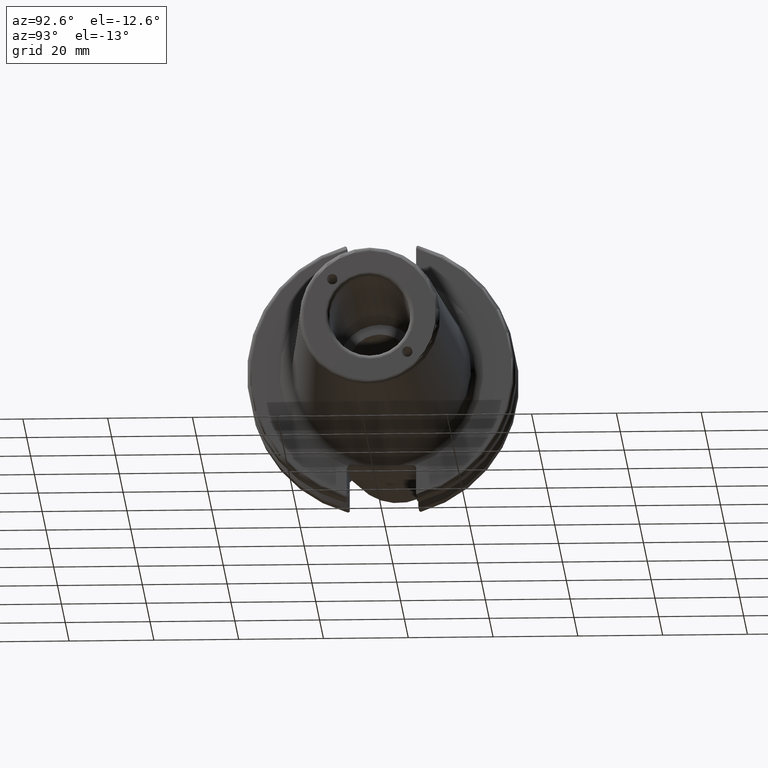
[diagram: clean part render]
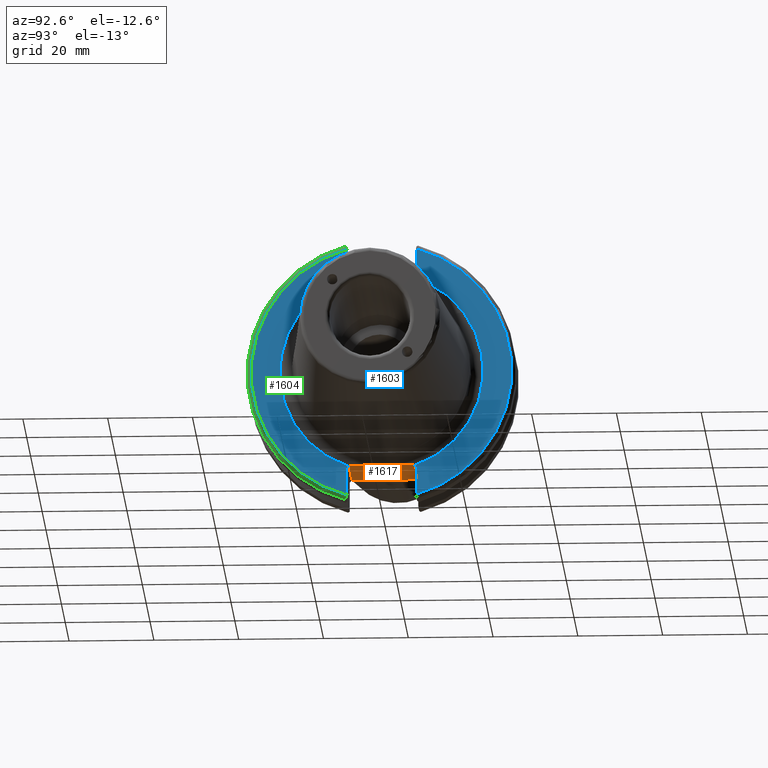
[diagram: same view with three faces highlighted in distinct colors, each labeled with its STEP entity id]
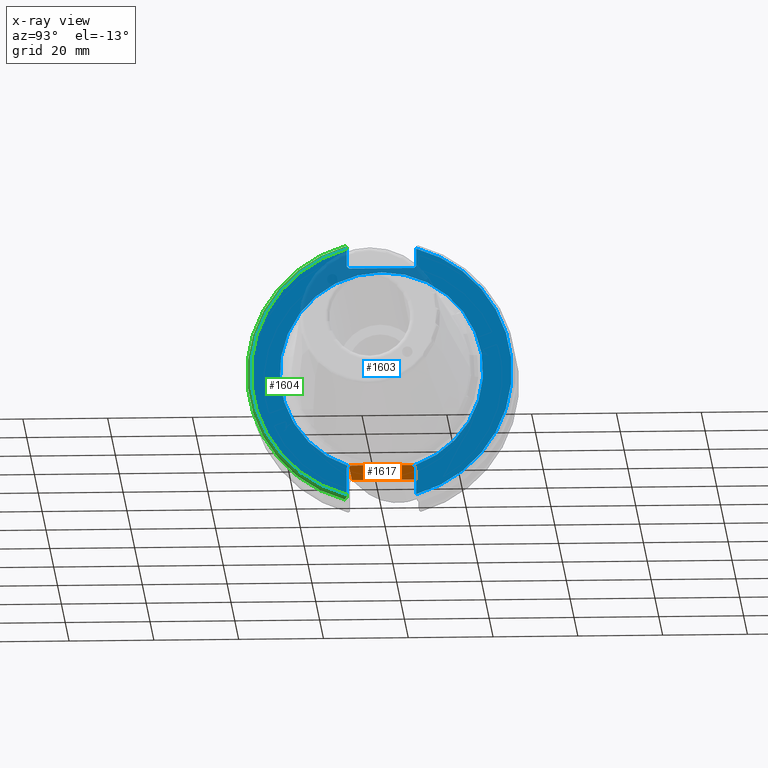
[diagram: x-ray of the same camera — body ghosted, the three highlighted faces saturated]
A machine part, auxiliary view with three faces highlighted in distinct colors.
The next image is the same camera in x-ray (body ghosted, the three faces saturated) — at least one of them is partly hidden behind the body in this view.
Their STEP definitions:

[orange] entity #1617 — the highlighted planar face has unit normal (0, 0, 1).
#31=B_SPLINE_CURVE_WITH_KNOTS('',3,(#2371,#2372,#2373,#2374,#2375,#2376,
#2377,#2378),.UNSPECIFIED.,.F.,.F.,(4,2,2,4),(3.0216236412766,3.28363628936794,
3.54564893745927,3.74225815963158),.UNSPECIFIED.);
#34=B_SPLINE_CURVE_WITH_KNOTS('',3,(#2391,#2392,#2393,#2394,#2395,#2396,
#2397,#2398),.UNSPECIFIED.,.F.,.F.,(4,2,2,4),(2.30098912292435,2.49759834509393,
2.75961099318527,3.0216236412766),.UNSPECIFIED.);
#124=LINE('',#2847,#219);
#154=LINE('',#3081,#249);
#155=LINE('',#3083,#250);
#219=VECTOR('',#2145,10.);
#249=VECTOR('',#2239,10.);
#250=VECTOR('',#2242,10.);
#360=PLANE('',#1819);
#440=FACE_OUTER_BOUND('',#547,.T.);
#547=EDGE_LOOP('',(#1418,#1419,#1420,#1421,#1422));
#666=VERTEX_POINT('',#2368);
#667=VERTEX_POINT('',#2370);
#670=VERTEX_POINT('',#2386);
#760=VERTEX_POINT('',#2844);
#761=VERTEX_POINT('',#2846);
#830=EDGE_CURVE('',#667,#666,#31,.F.);
#834=EDGE_CURVE('',#666,#670,#34,.F.);
#959=EDGE_CURVE('',#760,#761,#124,.T.);
#1025=EDGE_CURVE('',#667,#760,#154,.T.);
#1026=EDGE_CURVE('',#761,#670,#155,.T.);
#1418=ORIENTED_EDGE('',*,*,#1025,.F.);
#1419=ORIENTED_EDGE('',*,*,#830,.T.);
#1420=ORIENTED_EDGE('',*,*,#834,.T.);
#1421=ORIENTED_EDGE('',*,*,#1026,.F.);
#1422=ORIENTED_EDGE('',*,*,#959,.F.);
#1617=ADVANCED_FACE('',(#440),#360,.F.);
#1819=AXIS2_PLACEMENT_3D('',#3082,#2240,#2241);
#2145=DIRECTION('',(0.,-1.,0.));
#2239=DIRECTION('',(-1.,-1.31581988103722E-16,0.));
#2240=DIRECTION('center_axis',(0.,0.,1.));
#2241=DIRECTION('ref_axis',(1.,0.,0.));
#2242=DIRECTION('',(1.,0.,0.));
#2368=CARTESIAN_POINT('',(19.3967001677157,-1.38385088303651E-15,-22.6));
#2370=CARTESIAN_POINT('',(19.0527107387712,7.68999999999903,-22.5999999999997));
#2371=CARTESIAN_POINT('Ctrl Pts',(19.3967001677157,0.,-22.6));
#2372=CARTESIAN_POINT('Ctrl Pts',(19.3967001677157,0.873375493637784,-22.6));
#2373=CARTESIAN_POINT('Ctrl Pts',(19.36568730967,1.83307700034502,-22.6));
#2374=CARTESIAN_POINT('Ctrl Pts',(19.260184656287,3.75074838316052,-22.6));
#2375=CARTESIAN_POINT('Ctrl Pts',(19.1897248959444,4.70893785217619,-22.6));
#2376=CARTESIAN_POINT('Ctrl Pts',(19.0991248022468,6.23499037040782,-22.6));
#2377=CARTESIAN_POINT('Ctrl Pts',(19.0621726707475,6.99950800192411,-22.6));
#2378=CARTESIAN_POINT('Ctrl Pts',(19.0527107387712,7.68999999999903,-22.6));
#2386=CARTESIAN_POINT('',(19.0527107387728,-7.68999999997033,-22.5999999999852));
#2391=CARTESIAN_POINT('Ctrl Pts',(19.0527107387716,-7.68999999997031,-22.6));
#2392=CARTESIAN_POINT('Ctrl Pts',(19.0621726707484,-6.99950800190292,-22.6));
#2393=CARTESIAN_POINT('Ctrl Pts',(19.0991248022473,-6.23499037039875,-22.6));
#2394=CARTESIAN_POINT('Ctrl Pts',(19.1897248959444,-4.70893785217619,-22.6));
#2395=CARTESIAN_POINT('Ctrl Pts',(19.260184656287,-3.75074838316052,-22.6));
#2396=CARTESIAN_POINT('Ctrl Pts',(19.36568730967,-1.83307700034502,-22.6));
#2397=CARTESIAN_POINT('Ctrl Pts',(19.3967001677157,-0.873375493637784,-22.6));
#2398=CARTESIAN_POINT('Ctrl Pts',(19.3967001677157,0.,-22.6));
#2844=CARTESIAN_POINT('',(3.175,7.69,-22.6));
#2846=CARTESIAN_POINT('',(3.175,-7.69,-22.6));
#2847=CARTESIAN_POINT('',(3.175,15.875,-22.6));
#3081=CARTESIAN_POINT('',(9.44125,7.69,-22.6));
#3082=CARTESIAN_POINT('Origin',(15.7075,-5.55111512312578E-16,-22.6));
#3083=CARTESIAN_POINT('',(17.87875,-7.69,-22.6));

[blue] entity #1603 — the highlighted planar face has unit normal (1, 0, 0).
#130=LINE('',#2902,#225);
#133=LINE('',#2916,#228);
#134=LINE('',#2918,#229);
#135=LINE('',#2920,#230);
#136=LINE('',#2922,#231);
#137=LINE('',#2924,#232);
#138=LINE('',#2926,#233);
#139=LINE('',#2930,#234);
#140=LINE('',#2931,#235);
#225=VECTOR('',#2165,10.);
#228=VECTOR('',#2170,10.);
#229=VECTOR('',#2171,10.);
#230=VECTOR('',#2172,10.);
#231=VECTOR('',#2173,10.);
#232=VECTOR('',#2174,10.);
#233=VECTOR('',#2175,10.);
#234=VECTOR('',#2178,10.);
#235=VECTOR('',#2179,10.);
#352=PLANE('',#1794);
#426=FACE_OUTER_BOUND('',#532,.T.);
#532=EDGE_LOOP('',(#1331,#1332,#1333,#1334,#1335,#1336,#1337,#1338,#1339,
#1340,#1341,#1342));
#588=CIRCLE('',#1687,24.);
#630=CIRCLE('',#1790,30.75);
#632=CIRCLE('',#1795,30.75);
#668=VERTEX_POINT('',#2379);
#669=VERTEX_POINT('',#2384);
#765=VERTEX_POINT('',#2857);
#766=VERTEX_POINT('',#2864);
#772=VERTEX_POINT('',#2901);
#774=VERTEX_POINT('',#2917);
#775=VERTEX_POINT('',#2919);
#776=VERTEX_POINT('',#2921);
#777=VERTEX_POINT('',#2923);
#778=VERTEX_POINT('',#2925);
#779=VERTEX_POINT('',#2927);
#780=VERTEX_POINT('',#2929);
#832=EDGE_CURVE('',#668,#669,#588,.T.);
#965=EDGE_CURVE('',#765,#766,#630,.T.);
#973=EDGE_CURVE('',#772,#766,#130,.T.);
#978=EDGE_CURVE('',#772,#668,#133,.T.);
#979=EDGE_CURVE('',#765,#774,#134,.T.);
#980=EDGE_CURVE('',#775,#774,#135,.T.);
#981=EDGE_CURVE('',#775,#776,#136,.T.);
#982=EDGE_CURVE('',#777,#776,#137,.T.);
#983=EDGE_CURVE('',#777,#778,#138,.T.);
#984=EDGE_CURVE('',#779,#778,#632,.T.);
#985=EDGE_CURVE('',#779,#780,#139,.T.);
#986=EDGE_CURVE('',#669,#780,#140,.T.);
#1331=ORIENTED_EDGE('',*,*,#832,.F.);
#1332=ORIENTED_EDGE('',*,*,#978,.F.);
#1333=ORIENTED_EDGE('',*,*,#973,.T.);
#1334=ORIENTED_EDGE('',*,*,#965,.F.);
#1335=ORIENTED_EDGE('',*,*,#979,.T.);
#1336=ORIENTED_EDGE('',*,*,#980,.F.);
#1337=ORIENTED_EDGE('',*,*,#981,.T.);
#1338=ORIENTED_EDGE('',*,*,#982,.F.);
#1339=ORIENTED_EDGE('',*,*,#983,.T.);
#1340=ORIENTED_EDGE('',*,*,#984,.F.);
#1341=ORIENTED_EDGE('',*,*,#985,.T.);
#1342=ORIENTED_EDGE('',*,*,#986,.F.);
#1603=ADVANCED_FACE('',(#426),#352,.T.);
#1687=AXIS2_PLACEMENT_3D('',#2385,#1901,#1902);
#1790=AXIS2_PLACEMENT_3D('',#2865,#2155,#2156);
#1794=AXIS2_PLACEMENT_3D('',#2915,#2168,#2169);
#1795=AXIS2_PLACEMENT_3D('',#2928,#2176,#2177);
#1901=DIRECTION('center_axis',(1.,0.,0.));
#1902=DIRECTION('ref_axis',(0.,-1.,-1.22464679914735E-16));
#2155=DIRECTION('center_axis',(-1.,0.,0.));
#2156=DIRECTION('ref_axis',(0.,1.,-6.12323399573677E-17));
#2165=DIRECTION('',(0.,0.,-1.));
#2168=DIRECTION('center_axis',(1.,0.,0.));
#2169=DIRECTION('ref_axis',(0.,0.,-1.));
#2170=DIRECTION('',(0.,-0.707106781186549,0.707106781186546));
#2171=DIRECTION('',(0.,0.,-1.));
#2172=DIRECTION('',(0.,0.707106781186549,0.707106781186546));
#2173=DIRECTION('',(0.,-1.,0.));
#2174=DIRECTION('',(0.,0.70710678118655,-0.707106781186545));
#2175=DIRECTION('',(0.,0.,1.));
#2176=DIRECTION('center_axis',(-1.,0.,0.));
#2177=DIRECTION('ref_axis',(0.,-1.,1.60812264967664E-16));
#2178=DIRECTION('',(0.,0.,1.));
#2179=DIRECTION('',(0.,-0.707106781186549,-0.707106781186546));
#2379=CARTESIAN_POINT('',(19.05,7.79042472350311,-22.7004247235031));
#2384=CARTESIAN_POINT('',(19.05,-7.79042472350311,-22.7004247235031));
#2385=CARTESIAN_POINT('Origin',(19.05,0.,0.));
#2857=CARTESIAN_POINT('',(19.05,8.19,29.6392712461019));
#2864=CARTESIAN_POINT('',(19.05,8.19,-29.6392712461019));
#2865=CARTESIAN_POINT('Origin',(19.05,0.,0.));
#2901=CARTESIAN_POINT('',(19.05,8.19,-23.1));
#2902=CARTESIAN_POINT('',(19.05,8.19,-11.3));
#2915=CARTESIAN_POINT('Origin',(19.05,0.,0.));
#2916=CARTESIAN_POINT('',(19.05,0.242499999999989,-15.1525));
#2917=CARTESIAN_POINT('',(19.05,8.19,25.5));
#2918=CARTESIAN_POINT('',(19.05,8.19,12.5));
#2919=CARTESIAN_POINT('',(19.05,7.69,25.));
#2920=CARTESIAN_POINT('',(19.05,-0.35750000000001,16.9525));
#2921=CARTESIAN_POINT('',(19.05,-7.69,25.));
#2922=CARTESIAN_POINT('',(19.05,0.,25.));
#2923=CARTESIAN_POINT('',(19.05,-8.19,25.5));
#2924=CARTESIAN_POINT('',(19.05,0.357500000000014,16.9525));
#2925=CARTESIAN_POINT('',(19.05,-8.19,29.6392712461019));
#2926=CARTESIAN_POINT('',(19.05,-8.19,12.5));
#2927=CARTESIAN_POINT('',(19.05,-8.19,-29.6392712461019));
#2928=CARTESIAN_POINT('Origin',(19.05,0.,0.));
#2929=CARTESIAN_POINT('',(19.05,-8.19,-23.1));
#2930=CARTESIAN_POINT('',(19.05,-8.19,-11.3));
#2931=CARTESIAN_POINT('',(19.05,-0.242499999999991,-15.1525));

[green] entity #1604 — the highlighted toroidal blend (fillet) surface has major radius 30.75 mm and minor (blend) radius 1 mm.
#54=B_SPLINE_CURVE_WITH_KNOTS('',3,(#2934,#2935,#2936,#2937,#2938,#2939),
 .UNSPECIFIED.,.F.,.F.,(4,2,4),(0.097738363091569,0.112311108149119,0.150804350305566),
 .UNSPECIFIED.);
#55=B_SPLINE_CURVE_WITH_KNOTS('',3,(#2941,#2942,#2943,#2944,#2945,#2946),
 .UNSPECIFIED.,.F.,.F.,(4,2,4),(0.452741154494497,0.491581665024872,0.505824174364156),
 .UNSPECIFIED.);
#56=B_SPLINE_CURVE_WITH_KNOTS('',3,(#2948,#2949,#2950,#2951,#2952,#2953,
#2954,#2955),.UNSPECIFIED.,.F.,.F.,(4,2,2,4),(-0.104180282751877,-0.0729784742461446,
-0.0343524753874984,0.),.UNSPECIFIED.);
#57=B_SPLINE_CURVE_WITH_KNOTS('',3,(#2958,#2959,#2960,#2961,#2962,#2963,
#2964,#2965),.UNSPECIFIED.,.F.,.F.,(4,2,2,4),(0.,0.0343524753874978,0.0729784742461449,
0.104180282751877),.UNSPECIFIED.);
#427=FACE_OUTER_BOUND('',#533,.T.);
#533=EDGE_LOOP('',(#1343,#1344,#1345,#1346,#1347,#1348));
#632=CIRCLE('',#1795,30.75);
#633=CIRCLE('',#1797,31.75);
#778=VERTEX_POINT('',#2925);
#779=VERTEX_POINT('',#2927);
#781=VERTEX_POINT('',#2933);
#782=VERTEX_POINT('',#2940);
#783=VERTEX_POINT('',#2947);
#784=VERTEX_POINT('',#2956);
#984=EDGE_CURVE('',#779,#778,#632,.T.);
#987=EDGE_CURVE('',#781,#779,#54,.T.);
#988=EDGE_CURVE('',#778,#782,#55,.T.);
#989=EDGE_CURVE('',#782,#783,#56,.T.);
#990=EDGE_CURVE('',#783,#784,#633,.T.);
#991=EDGE_CURVE('',#784,#781,#57,.T.);
#1343=ORIENTED_EDGE('',*,*,#987,.T.);
#1344=ORIENTED_EDGE('',*,*,#984,.T.);
#1345=ORIENTED_EDGE('',*,*,#988,.T.);
#1346=ORIENTED_EDGE('',*,*,#989,.T.);
#1347=ORIENTED_EDGE('',*,*,#990,.T.);
#1348=ORIENTED_EDGE('',*,*,#991,.T.);
#1548=TOROIDAL_SURFACE('',#1796,30.75,1.);
#1604=ADVANCED_FACE('',(#427),#1548,.T.);
#1795=AXIS2_PLACEMENT_3D('',#2928,#2176,#2177);
#1796=AXIS2_PLACEMENT_3D('',#2932,#2180,#2181);
#1797=AXIS2_PLACEMENT_3D('',#2957,#2182,#2183);
#2176=DIRECTION('center_axis',(-1.,0.,0.));
#2177=DIRECTION('ref_axis',(0.,-1.,1.60812264967664E-16));
#2180=DIRECTION('center_axis',(1.,0.,0.));
#2181=DIRECTION('ref_axis',(0.,0.,-1.));
#2182=DIRECTION('center_axis',(1.,0.,0.));
#2183=DIRECTION('ref_axis',(0.,-1.,1.60812264967664E-16));
#2925=CARTESIAN_POINT('',(19.05,-8.19,29.6392712461019));
#2927=CARTESIAN_POINT('',(19.05,-8.19,-29.6392712461019));
#2928=CARTESIAN_POINT('Origin',(19.05,0.,0.));
#2932=CARTESIAN_POINT('Origin',(18.05,0.,0.));
#2933=CARTESIAN_POINT('',(18.9058722749097,-8.19,-30.1755016258903));
#2934=CARTESIAN_POINT('Ctrl Pts',(18.9058722749097,-8.19,-30.1755016258903));
#2935=CARTESIAN_POINT('Ctrl Pts',(18.9324477233044,-8.19,-30.1299319366157));
#2936=CARTESIAN_POINT('Ctrl Pts',(18.9550700364447,-8.19,-30.0829389905409));
#2937=CARTESIAN_POINT('Ctrl Pts',(19.0210043632013,-8.19,-29.9188002007263));
#2938=CARTESIAN_POINT('Ctrl Pts',(19.05,-8.19,-29.76758205329));
#2939=CARTESIAN_POINT('Ctrl Pts',(19.05,-8.19,-29.6392712461019));
#2940=CARTESIAN_POINT('',(18.9058722749097,-8.19,30.1755016258903));
#2941=CARTESIAN_POINT('Ctrl Pts',(19.05,-8.19,29.6392712461019));
#2942=CARTESIAN_POINT('Ctrl Pts',(19.05,-8.19,29.7687396145364));
#2943=CARTESIAN_POINT('Ctrl Pts',(19.020485567083,-8.19,29.9212724384851));
#2944=CARTESIAN_POINT('Ctrl Pts',(18.9539643471756,-8.19,30.0852355256475));
#2945=CARTESIAN_POINT('Ctrl Pts',(18.9318163728133,-8.19,30.131014531546));
#2946=CARTESIAN_POINT('Ctrl Pts',(18.9058722749097,-8.19,30.1755016258903));
#2947=CARTESIAN_POINT('',(18.05,-8.67204822802685,30.5427254764662));
#2948=CARTESIAN_POINT('Ctrl Pts',(18.9058722749097,-8.19,30.1755016258903));
#2949=CARTESIAN_POINT('Ctrl Pts',(18.8574463042989,-8.2703682833078,30.2367261024977));
#2950=CARTESIAN_POINT('Ctrl Pts',(18.7926702662319,-8.34909446036477,30.2966996242308));
#2951=CARTESIAN_POINT('Ctrl Pts',(18.6396724190507,-8.48862804755884,30.4029961692546));
#2952=CARTESIAN_POINT('Ctrl Pts',(18.5184414294771,-8.56482138642532,30.4610401774263));
#2953=CARTESIAN_POINT('Ctrl Pts',(18.2983170433775,-8.6471881193939,30.5237870709558));
#2954=CARTESIAN_POINT('Ctrl Pts',(18.1645082512917,-8.67204822802685,30.5427254764662));
#2955=CARTESIAN_POINT('Ctrl Pts',(18.05,-8.67204822802685,30.5427254764662));
#2956=CARTESIAN_POINT('',(18.05,-8.67204822802686,-30.5427254764662));
#2957=CARTESIAN_POINT('Origin',(18.05,0.,0.));
#2958=CARTESIAN_POINT('Ctrl Pts',(18.05,-8.67204822802685,-30.5427254764662));
#2959=CARTESIAN_POINT('Ctrl Pts',(18.1645082512917,-8.67204822802685,-30.5427254764662));
#2960=CARTESIAN_POINT('Ctrl Pts',(18.2983170433775,-8.6471881193939,-30.5237870709558));
#2961=CARTESIAN_POINT('Ctrl Pts',(18.5184414294771,-8.56482138642532,-30.4610401774263));
#2962=CARTESIAN_POINT('Ctrl Pts',(18.6396724190507,-8.48862804755883,-30.4029961692546));
#2963=CARTESIAN_POINT('Ctrl Pts',(18.7926702662319,-8.34909446036477,-30.2966996242308));
#2964=CARTESIAN_POINT('Ctrl Pts',(18.8574463042989,-8.2703682833078,-30.2367261024977));
#2965=CARTESIAN_POINT('Ctrl Pts',(18.9058722749097,-8.19,-30.1755016258903));